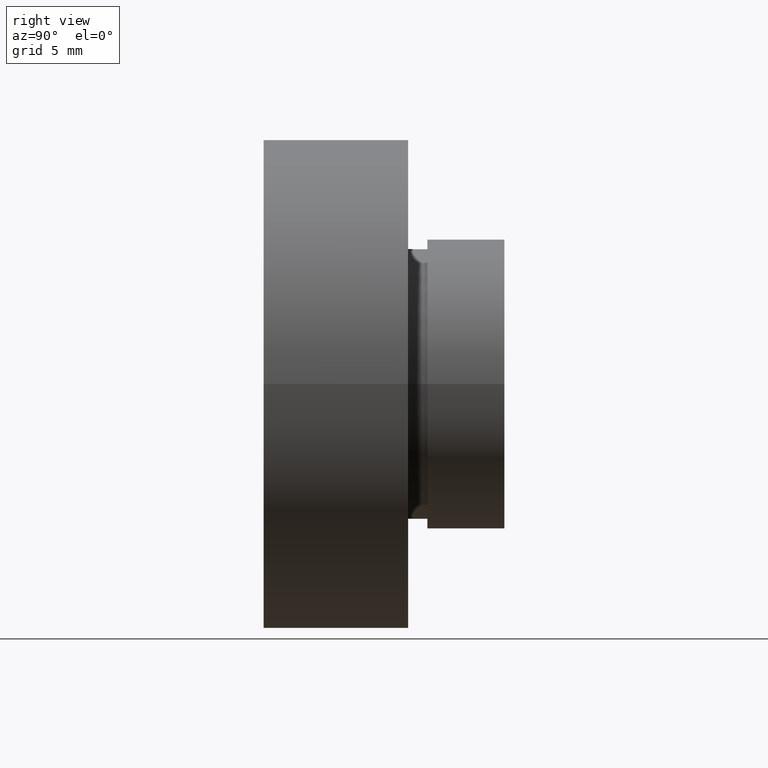
[diagram: clean part render]
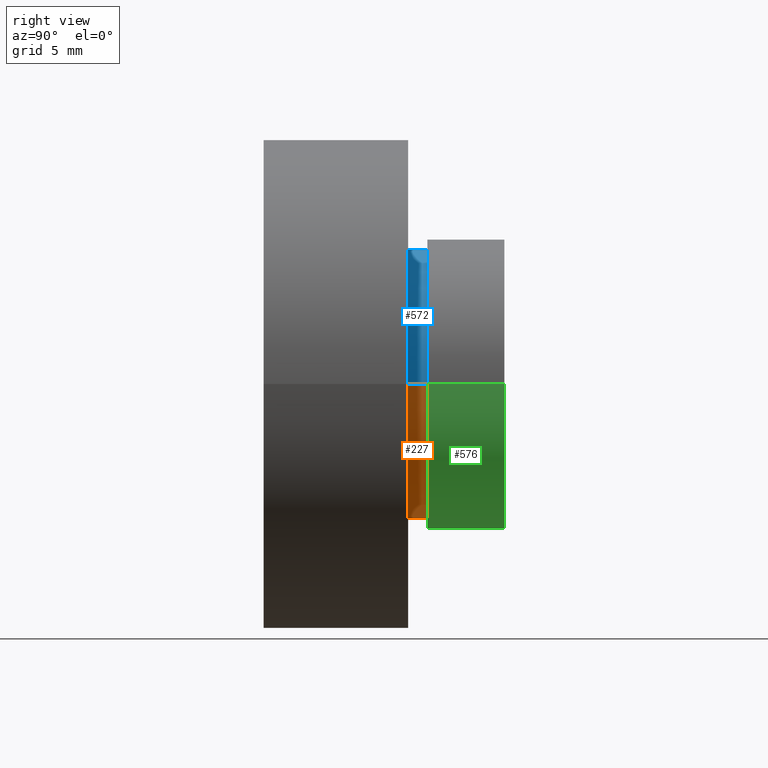
[diagram: same view with three faces highlighted in distinct colors, each labeled with its STEP entity id]
A machine part, right view with three faces highlighted in distinct colors.
Their STEP definitions:

[orange] entity #227 — the highlighted cylindrical surface (partial cylindrical patch) has radius 7 mm, axis along (-0, 1, -0).
#33 = AXIS2_PLACEMENT_3D ( 'NONE', #114, #297, #69 ) ;
#69 = DIRECTION ( 'NONE',  ( -1.000000000000000000, -1.239088197126290800E-016, 0.0000000000000000000 ) ) ;
#75 = CARTESIAN_POINT ( 'NONE',  ( -6.999999999999999100, 8.500000000000000000, 0.0000000000000000000 ) ) ;
#80 = ORIENTED_EDGE ( 'NONE', *, *, #127, .T. ) ;
#84 = ORIENTED_EDGE ( 'NONE', *, *, #234, .F. ) ;
#94 = EDGE_LOOP ( 'NONE', ( #84, #454, #80, #445 ) ) ;
#97 = DIRECTION ( 'NONE',  ( -1.224646799147351000E-016, 1.000000000000000000, -0.0000000000000000000 ) ) ;
#109 = AXIS2_PLACEMENT_3D ( 'NONE', #526, #303, #271 ) ;
#114 = CARTESIAN_POINT ( 'NONE',  ( 1.149455719078122500E-015, 7.500000000000000000, 0.0000000000000000000 ) ) ;
#127 = EDGE_CURVE ( 'NONE', #280, #350, #136, .T. ) ;
#134 = CARTESIAN_POINT ( 'NONE',  ( 7.000000000000000900, 7.500000000000000900, 8.572527594031473200E-016 ) ) ;
#136 = LINE ( 'NONE', #263, #513 ) ;
#144 = CARTESIAN_POINT ( 'NONE',  ( 7.000000000000000000, 16.88601823708207700, 8.572527594031473200E-016 ) ) ;
#153 = CARTESIAN_POINT ( 'NONE',  ( 7.000000000000000900, 8.500000000000000000, 8.572527594031473200E-016 ) ) ;
#188 = LINE ( 'NONE', #144, #369 ) ;
#210 = EDGE_CURVE ( 'NONE', #535, #280, #487, .T. ) ;
#216 = AXIS2_PLACEMENT_3D ( 'NONE', #538, #566, #564 ) ;
#227 = ADVANCED_FACE ( 'NONE', ( #473 ), #428, .T. ) ;
#234 = EDGE_CURVE ( 'NONE', #535, #525, #188, .T. ) ;
#235 = CIRCLE ( 'NONE', #216, 7.000000000000000000 ) ;
#263 = CARTESIAN_POINT ( 'NONE',  ( -7.000000000000000000, 16.88601823708207700, 0.0000000000000000000 ) ) ;
#271 = DIRECTION ( 'NONE',  ( -1.000000000000000000, 0.0000000000000000000, 0.0000000000000000000 ) ) ;
#280 = VERTEX_POINT ( 'NONE', #519 ) ;
#297 = DIRECTION ( 'NONE',  ( -1.224646799147351000E-016, 1.000000000000000000, -0.0000000000000000000 ) ) ;
#303 = DIRECTION ( 'NONE',  ( -1.224646799147351000E-016, 1.000000000000000000, -0.0000000000000000000 ) ) ;
#350 = VERTEX_POINT ( 'NONE', #75 ) ;
#368 = DIRECTION ( 'NONE',  ( -1.224646799147351000E-016, 1.000000000000000000, -0.0000000000000000000 ) ) ;
#369 = VECTOR ( 'NONE', #368, 1000.000000000000000 ) ;
#428 = CYLINDRICAL_SURFACE ( 'NONE', #109, 7.000000000000000000 ) ;
#445 = ORIENTED_EDGE ( 'NONE', *, *, #623, .F. ) ;
#454 = ORIENTED_EDGE ( 'NONE', *, *, #210, .T. ) ;
#473 = FACE_OUTER_BOUND ( 'NONE', #94, .T. ) ;
#487 = CIRCLE ( 'NONE', #33, 7.000000000000000000 ) ;
#513 = VECTOR ( 'NONE', #97, 1000.000000000000000 ) ;
#519 = CARTESIAN_POINT ( 'NONE',  ( -6.999999999999999100, 7.499999999999999100, 0.0000000000000000000 ) ) ;
#525 = VERTEX_POINT ( 'NONE', #153 ) ;
#526 = CARTESIAN_POINT ( 'NONE',  ( 0.0000000000000000000, 16.88601823708207700, 0.0000000000000000000 ) ) ;
#535 = VERTEX_POINT ( 'NONE', #134 ) ;
#538 = CARTESIAN_POINT ( 'NONE',  ( 1.026991039163387500E-015, 8.500000000000000000, 0.0000000000000000000 ) ) ;
#564 = DIRECTION ( 'NONE',  ( -1.000000000000000000, 0.0000000000000000000, 0.0000000000000000000 ) ) ;
#566 = DIRECTION ( 'NONE',  ( -1.224646799147351000E-016, 1.000000000000000000, -0.0000000000000000000 ) ) ;
#623 = EDGE_CURVE ( 'NONE', #525, #350, #235, .T. ) ;

[blue] entity #572 — the highlighted cylindrical surface (partial cylindrical patch) has radius 7 mm, axis along (-0, 1, -0).
#46 = DIRECTION ( 'NONE',  ( -1.224646799147351000E-016, 1.000000000000000000, -0.0000000000000000000 ) ) ;
#75 = CARTESIAN_POINT ( 'NONE',  ( -6.999999999999999100, 8.500000000000000000, 0.0000000000000000000 ) ) ;
#97 = DIRECTION ( 'NONE',  ( -1.224646799147351000E-016, 1.000000000000000000, -0.0000000000000000000 ) ) ;
#100 = CARTESIAN_POINT ( 'NONE',  ( 1.026991039163387500E-015, 8.500000000000000000, 0.0000000000000000000 ) ) ;
#127 = EDGE_CURVE ( 'NONE', #280, #350, #136, .T. ) ;
#134 = CARTESIAN_POINT ( 'NONE',  ( 7.000000000000000900, 7.500000000000000900, 8.572527594031473200E-016 ) ) ;
#136 = LINE ( 'NONE', #263, #513 ) ;
#144 = CARTESIAN_POINT ( 'NONE',  ( 7.000000000000000000, 16.88601823708207700, 8.572527594031473200E-016 ) ) ;
#153 = CARTESIAN_POINT ( 'NONE',  ( 7.000000000000000900, 8.500000000000000000, 8.572527594031473200E-016 ) ) ;
#169 = DIRECTION ( 'NONE',  ( -1.000000000000000000, -1.239088197126290800E-016, 0.0000000000000000000 ) ) ;
#173 = ORIENTED_EDGE ( 'NONE', *, *, #594, .T. ) ;
#187 = EDGE_CURVE ( 'NONE', #350, #525, #565, .T. ) ;
#188 = LINE ( 'NONE', #144, #369 ) ;
#196 = CIRCLE ( 'NONE', #341, 7.000000000000000000 ) ;
#206 = CARTESIAN_POINT ( 'NONE',  ( 1.149455719078122500E-015, 7.500000000000000000, 0.0000000000000000000 ) ) ;
#234 = EDGE_CURVE ( 'NONE', #535, #525, #188, .T. ) ;
#263 = CARTESIAN_POINT ( 'NONE',  ( -7.000000000000000000, 16.88601823708207700, 0.0000000000000000000 ) ) ;
#280 = VERTEX_POINT ( 'NONE', #519 ) ;
#285 = DIRECTION ( 'NONE',  ( -1.224646799147351000E-016, 1.000000000000000000, -0.0000000000000000000 ) ) ;
#318 = EDGE_LOOP ( 'NONE', ( #173, #485, #593, #319 ) ) ;
#319 = ORIENTED_EDGE ( 'NONE', *, *, #127, .F. ) ;
#341 = AXIS2_PLACEMENT_3D ( 'NONE', #206, #285, #169 ) ;
#350 = VERTEX_POINT ( 'NONE', #75 ) ;
#354 = CARTESIAN_POINT ( 'NONE',  ( 0.0000000000000000000, 16.88601823708207700, 0.0000000000000000000 ) ) ;
#358 = DIRECTION ( 'NONE',  ( -1.224646799147351000E-016, 1.000000000000000000, -0.0000000000000000000 ) ) ;
#368 = DIRECTION ( 'NONE',  ( -1.224646799147351000E-016, 1.000000000000000000, -0.0000000000000000000 ) ) ;
#369 = VECTOR ( 'NONE', #368, 1000.000000000000000 ) ;
#383 = AXIS2_PLACEMENT_3D ( 'NONE', #100, #46, #609 ) ;
#385 = FACE_OUTER_BOUND ( 'NONE', #318, .T. ) ;
#404 = AXIS2_PLACEMENT_3D ( 'NONE', #354, #358, #466 ) ;
#466 = DIRECTION ( 'NONE',  ( -1.000000000000000000, 0.0000000000000000000, 0.0000000000000000000 ) ) ;
#485 = ORIENTED_EDGE ( 'NONE', *, *, #234, .T. ) ;
#513 = VECTOR ( 'NONE', #97, 1000.000000000000000 ) ;
#519 = CARTESIAN_POINT ( 'NONE',  ( -6.999999999999999100, 7.499999999999999100, 0.0000000000000000000 ) ) ;
#525 = VERTEX_POINT ( 'NONE', #153 ) ;
#535 = VERTEX_POINT ( 'NONE', #134 ) ;
#560 = CYLINDRICAL_SURFACE ( 'NONE', #404, 7.000000000000000000 ) ;
#565 = CIRCLE ( 'NONE', #383, 7.000000000000000000 ) ;
#572 = ADVANCED_FACE ( 'NONE', ( #385 ), #560, .T. ) ;
#593 = ORIENTED_EDGE ( 'NONE', *, *, #187, .F. ) ;
#594 = EDGE_CURVE ( 'NONE', #280, #535, #196, .T. ) ;
#609 = DIRECTION ( 'NONE',  ( -1.000000000000000000, 0.0000000000000000000, 0.0000000000000000000 ) ) ;

[green] entity #576 — the highlighted cylindrical surface (partial cylindrical patch) has radius 7.5 mm, axis along (-0, 1, -0).
#9 = DIRECTION ( 'NONE',  ( -1.000000000000000000, -2.312964634635743000E-016, 0.0000000000000000000 ) ) ;
#34 = ORIENTED_EDGE ( 'NONE', *, *, #553, .T. ) ;
#35 = VECTOR ( 'NONE', #174, 1000.000000000000000 ) ;
#38 = VECTOR ( 'NONE', #501, 1000.000000000000000 ) ;
#42 = ORIENTED_EDGE ( 'NONE', *, *, #574, .T. ) ;
#58 = DIRECTION ( 'NONE',  ( -1.000000000000000000, -2.312964634635743000E-016, 0.0000000000000000000 ) ) ;
#73 = CARTESIAN_POINT ( 'NONE',  ( 7.500000000000000000, 16.88601823708207700, 9.184850993605147900E-016 ) ) ;
#82 = CARTESIAN_POINT ( 'NONE',  ( 7.500000000000000900, 12.49999999999999800, 9.184850993605147900E-016 ) ) ;
#101 = FACE_OUTER_BOUND ( 'NONE', #287, .T. ) ;
#103 = CARTESIAN_POINT ( 'NONE',  ( 7.500000000000000900, 8.500000000000000000, 9.184850993605147900E-016 ) ) ;
#174 = DIRECTION ( 'NONE',  ( -1.224646799147351000E-016, 1.000000000000000000, -0.0000000000000000000 ) ) ;
#178 = DIRECTION ( 'NONE',  ( -1.000000000000000000, 0.0000000000000000000, 0.0000000000000000000 ) ) ;
#180 = CARTESIAN_POINT ( 'NONE',  ( -7.499999999999999100, 8.499999999999996400, 0.0000000000000000000 ) ) ;
#205 = CARTESIAN_POINT ( 'NONE',  ( -7.500000000000000000, 16.88601823708207700, 0.0000000000000000000 ) ) ;
#265 = AXIS2_PLACEMENT_3D ( 'NONE', #438, #620, #58 ) ;
#266 = VERTEX_POINT ( 'NONE', #82 ) ;
#287 = EDGE_LOOP ( 'NONE', ( #402, #42, #34, #339 ) ) ;
#313 = DIRECTION ( 'NONE',  ( -1.224646799147351000E-016, 1.000000000000000000, -0.0000000000000000000 ) ) ;
#324 = AXIS2_PLACEMENT_3D ( 'NONE', #417, #313, #178 ) ;
#339 = ORIENTED_EDGE ( 'NONE', *, *, #605, .F. ) ;
#359 = LINE ( 'NONE', #205, #38 ) ;
#367 = VERTEX_POINT ( 'NONE', #180 ) ;
#394 = VERTEX_POINT ( 'NONE', #514 ) ;
#398 = CYLINDRICAL_SURFACE ( 'NONE', #324, 7.500000000000000000 ) ;
#402 = ORIENTED_EDGE ( 'NONE', *, *, #622, .F. ) ;
#407 = LINE ( 'NONE', #73, #35 ) ;
#417 = CARTESIAN_POINT ( 'NONE',  ( 0.0000000000000000000, 16.88601823708207700, 0.0000000000000000000 ) ) ;
#433 = AXIS2_PLACEMENT_3D ( 'NONE', #541, #559, #9 ) ;
#434 = VERTEX_POINT ( 'NONE', #103 ) ;
#438 = CARTESIAN_POINT ( 'NONE',  ( 5.371323195044473300E-016, 12.49999999999999600, 0.0000000000000000000 ) ) ;
#490 = CIRCLE ( 'NONE', #433, 7.500000000000000000 ) ;
#501 = DIRECTION ( 'NONE',  ( -1.224646799147351000E-016, 1.000000000000000000, -0.0000000000000000000 ) ) ;
#514 = CARTESIAN_POINT ( 'NONE',  ( -7.499999999999999100, 12.49999999999999500, 0.0000000000000000000 ) ) ;
#541 = CARTESIAN_POINT ( 'NONE',  ( 1.026991039163387700E-015, 8.499999999999998200, 0.0000000000000000000 ) ) ;
#553 = EDGE_CURVE ( 'NONE', #367, #394, #359, .T. ) ;
#559 = DIRECTION ( 'NONE',  ( -1.224646799147351000E-016, 1.000000000000000000, -0.0000000000000000000 ) ) ;
#574 = EDGE_CURVE ( 'NONE', #434, #367, #490, .T. ) ;
#576 = ADVANCED_FACE ( 'NONE', ( #101 ), #398, .T. ) ;
#587 = CIRCLE ( 'NONE', #265, 7.500000000000000000 ) ;
#605 = EDGE_CURVE ( 'NONE', #266, #394, #587, .T. ) ;
#620 = DIRECTION ( 'NONE',  ( -1.224646799147351000E-016, 1.000000000000000000, -0.0000000000000000000 ) ) ;
#622 = EDGE_CURVE ( 'NONE', #434, #266, #407, .T. ) ;